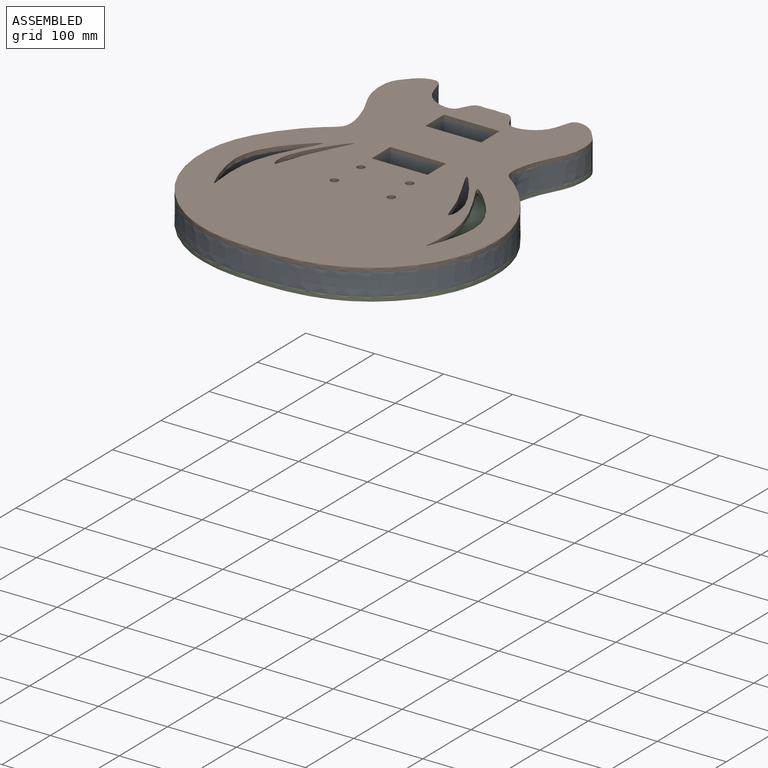
[diagram: assembled view]
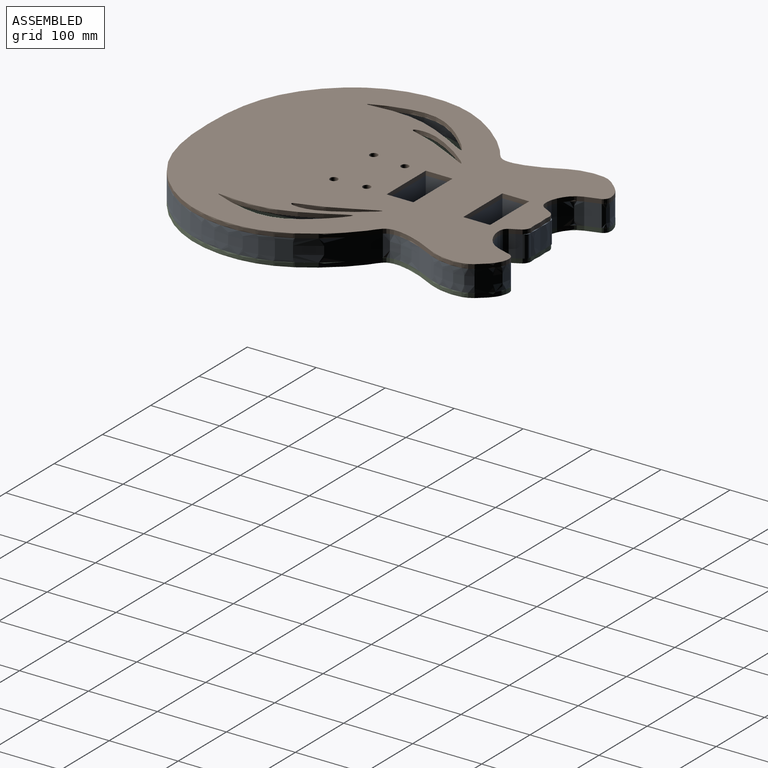
[diagram: assembled view, second angle]
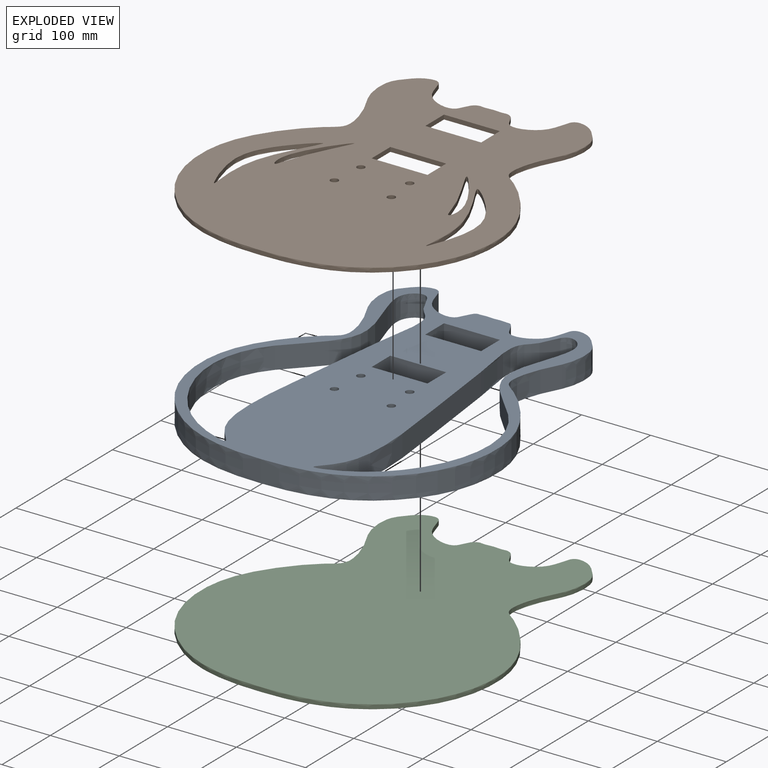
[diagram: exploded view]
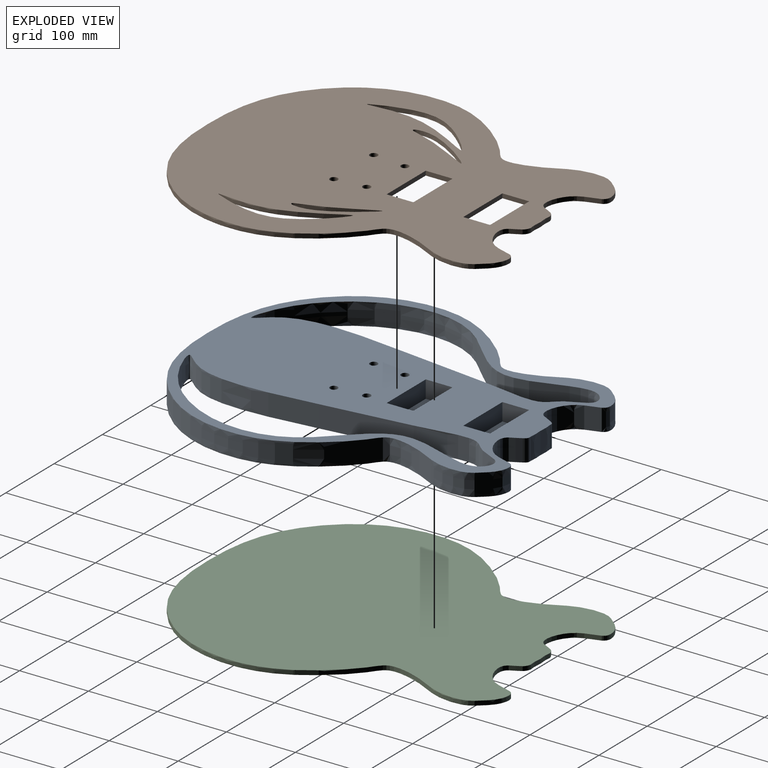
[diagram: exploded view, second angle]
ASSEMBLY  parts=3 mates=2
PART A: 28 faces, bbox 431.9x512.5x31.8 mm
  f0: plane 512.52x431.9mm, normal (0,0,1), area 90530.4mm2, adj f2,f3,f4,f5,f6,f7,f8,f9
  f1: plane 512.52x431.9mm, normal (0,0,-1), area 97220.5mm2, adj f2,f3,f4,f5,f6,f7,f8,f9
  f2: extruded ~510.03x213.88mm, area 26054.4mm2, adj f0,f1,f3,f7
  f3: extruded ~510.03x213.88mm, area 26054.4mm2, adj f0,f1,f2,f4
  f4: extruded ~31.75x9.1mm, area 366.8mm2, adj f0,f1,f3,f5
  f5: extruded ~31.75x19.81mm, area 631mm2, adj f0,f1,f4,f6
  f6: extruded ~31.75x19.81mm, area 631mm2, adj f0,f1,f5,f7
  f7: extruded ~31.75x9.1mm, area 366.8mm2, adj f0,f1,f2,f6
  f8: extruded ~471.36x135.99mm, area 34892.6mm2, adj f0,f1
  f9: extruded ~471.36x135.99mm, area 34892.6mm2, adj f0,f1
  f10: plane 38.86x25.4mm, normal (-1,0,0), area 987.1mm2, adj f0,f11,f13,f14
  f11: plane 81.03x25.4mm, normal (0,-1,0), area 2058.1mm2, adj f0,f10,f12,f14
  f12: plane 38.86x25.4mm, normal (1,0,0), area 987.1mm2, adj f0,f11,f13,f14
  f13: plane 81.03x25.4mm, normal (0,1,0), area 2058.1mm2, adj f0,f10,f12,f14
  f14: plane 81.03x38.86mm, normal (0,0,1), area 3148.8mm2, adj f10,f11,f12,f13
  f15: cylinder r=5.54mm len=25.4mm, axis (0,0,1), area 883.7mm2, adj f0,f16
  f16: plane 11.07x11.07mm, normal (0,0,1), area 96.3mm2, adj f15
  f17: plane 38.86x25.4mm, normal (-1,0,0), area 987.1mm2, adj f0,f18,f20,f21
  f18: plane 81.03x25.4mm, normal (0,-1,0), area 2058.1mm2, adj f0,f17,f19,f21
  f19: plane 38.86x25.4mm, normal (1,0,0), area 987.1mm2, adj f0,f18,f20,f21
  f20: plane 81.03x25.4mm, normal (0,1,0), area 2058.1mm2, adj f0,f17,f19,f21
  f21: plane 81.03x38.86mm, normal (0,0,1), area 3148.8mm2, adj f17,f18,f19,f20
  f22: cylinder r=5.64mm len=25.4mm, axis (0,0,1), area 899.9mm2, adj f0,f23
  f23: plane 11.28x11.28mm, normal (0,0,1), area 99.9mm2, adj f22
  f24: cylinder r=5.64mm len=25.4mm, axis (0,0,1), area 899.9mm2, adj f0,f25
  f25: plane 11.28x11.28mm, normal (0,0,1), area 99.9mm2, adj f24
  f26: cylinder r=5.54mm len=25.4mm, axis (0,0,1), area 883.7mm2, adj f0,f27
  f27: plane 11.07x11.07mm, normal (0,0,1), area 96.3mm2, adj f26
PART B: 24 faces, bbox 431.9x512.5x6.4 mm
  f0: plane 512.52x431.9mm, normal (0,0,1), area 145376.2mm2, adj f2,f3,f4,f5,f6,f7,f8,f9
  f1: plane 512.52x431.9mm, normal (0,0,-1), area 145376.2mm2, adj f2,f3,f4,f5,f6,f7,f8,f9
  f2: extruded ~510.03x213.88mm, area 5210.9mm2, adj f0,f1,f3,f7
  f3: extruded ~510.03x213.88mm, area 5210.9mm2, adj f0,f1,f2,f4
  f4: extruded ~9.1x6.35mm, area 68.7mm2, adj f0,f1,f3,f5
  f5: extruded ~19.81x6.35mm, area 126.2mm2, adj f0,f1,f4,f6
  f6: extruded ~19.81x6.35mm, area 126.2mm2, adj f0,f1,f5,f7
  f7: extruded ~9.1x6.35mm, area 68.7mm2, adj f0,f1,f2,f6
  f8: extruded ~165.74x60.86mm, area 2332.5mm2, adj f0,f1
  f9: extruded ~101.2x48.18mm, area 1457.5mm2, adj f0,f1
  f10: extruded ~101.2x48.18mm, area 1457.5mm2, adj f0,f1
  f11: extruded ~165.74x60.86mm, area 2332.5mm2, adj f0,f1
  f12: plane 38.86x6.35mm, normal (-1,0,0), area 246.8mm2, adj f0,f1,f13,f15
  f13: plane 81.03x6.35mm, normal (0,-1,0), area 514.5mm2, adj f0,f1,f12,f14
  f14: plane 38.86x6.35mm, normal (1,0,0), area 246.8mm2, adj f0,f1,f13,f15
  f15: plane 81.03x6.35mm, normal (0,1,0), area 514.5mm2, adj f0,f1,f12,f14
  f16: cylinder r=5.54mm len=11.07mm, axis (0,0,1), area 220.9mm2, adj f0,f1
  f17: cylinder r=5.54mm len=11.07mm, axis (0,0,1), area 220.9mm2, adj f0,f1
  f18: cylinder r=5.64mm len=11.28mm, axis (0,0,1), area 225mm2, adj f0,f1
  f19: cylinder r=5.64mm len=11.28mm, axis (0,0,1), area 225mm2, adj f0,f1
  f20: plane 38.86x6.35mm, normal (-1,0,0), area 246.8mm2, adj f0,f1,f21,f23
  f21: plane 81.03x6.35mm, normal (0,-1,0), area 514.5mm2, adj f0,f1,f20,f22
  f22: plane 38.86x6.35mm, normal (1,0,0), area 246.8mm2, adj f0,f1,f21,f23
  f23: plane 81.03x6.35mm, normal (0,1,0), area 514.5mm2, adj f0,f1,f20,f22
PART C: 8 faces, bbox 431.9x512.5x6.4 mm
  f0: extruded ~510.03x213.88mm, area 5210.9mm2, adj f1,f5,f6,f7
  f1: extruded ~510.03x213.88mm, area 5210.9mm2, adj f0,f2,f6,f7
  f2: extruded ~9.1x6.35mm, area 68.7mm2, adj f1,f3,f6,f7
  f3: extruded ~19.81x6.35mm, area 126.2mm2, adj f2,f4,f6,f7
  f4: extruded ~19.81x6.35mm, area 126.2mm2, adj f3,f5,f6,f7
  f5: extruded ~9.1x6.35mm, area 68.7mm2, adj f0,f4,f6,f7
  f6: plane 512.52x431.9mm, normal (0,0,1), area 159090.6mm2, adj f0,f1,f2,f3,f4,f5
  f7: plane 512.52x431.9mm, normal (0,0,-1), area 159090.6mm2, adj f0,f1,f2,f3,f4,f5
PLACE A t=(546.9,-247.76,124.08)mm
PLACE B t=(546.9,-247.76,124.08)mm
PLACE C t=(546.9,-247.76,85.98)mm
MATE parallel B.f1 <-> A.f0  axis (0,0,1) through (546.9,-92.09,124.08)mm
MATE parallel C.f6 <-> A.f1  axis (0,0,1) through (546.9,-92.09,92.33)mm
